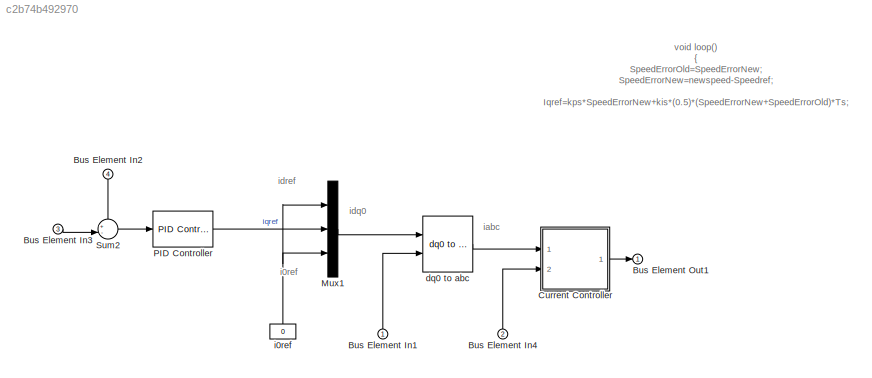
MODEL slx_c2b74b492970
KIND model
CONFIG AbsTol = auto
CONFIG EnableMultiTasking = off
CONFIG FixedStep = auto
CONFIG MaxStep = auto
CONFIG MinStep = auto
CONFIG RelTol = 1e-3
CONFIG SampleTimeConstraint = Unconstrained
CONFIG Solver = VariableStepAuto
CONFIG SolverName = VariableStepAuto
CONFIG StartTime = 0.0
CONFIG StopTime = 10.0
BLOCK [Inport] Bus Element In1
  NameLocation = right
BLOCK [Inport] Bus Element In2
  NameLocation = left
  Port = 4
BLOCK [Inport] Bus Element In3
  Port = 3
BLOCK [Inport] Bus Element In4
  NameLocation = right
  Port = 2
BLOCK [Outport] Bus Element Out1
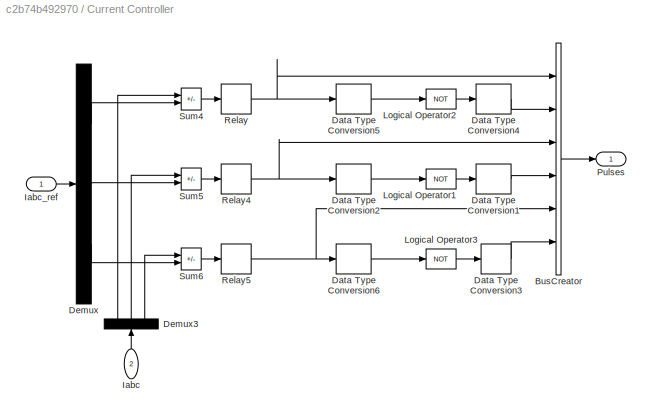
BLOCK [SubSystem] Current Controller
  NameLocation = top
  Ports = [2, 1]
  RequestExecContextInheritance = off
BLOCK [BusCreator] Current Controller/BusCreator
  InheritFromInputs = on
  Inputs = 6
  Ports = [6, 1]
BLOCK [DataTypeConversion] Current Controller/Data Type Conversion1
BLOCK [DataTypeConversion] Current Controller/Data Type Conversion2
BLOCK [DataTypeConversion] Current Controller/Data Type Conversion3
BLOCK [DataTypeConversion] Current Controller/Data Type Conversion4
BLOCK [DataTypeConversion] Current Controller/Data Type Conversion5
BLOCK [DataTypeConversion] Current Controller/Data Type Conversion6
BLOCK [Demux] Current Controller/Demux
  Outputs = 3
  Ports = [1, 3]
BLOCK [Demux] Current Controller/Demux3
  NameLocation = right
  Outputs = 3
  Ports = [1, 3]
BLOCK [Inport] Current Controller/Iabc
  NameLocation = left
  Port = 2
BLOCK [Inport] Current Controller/Iabc_ref
  NameLocation = top
BLOCK [Logic] Current Controller/Logical Operator1
  Operator = NOT
  Ports = [1, 1]
BLOCK [Logic] Current Controller/Logical Operator2
  Operator = NOT
  Ports = [1, 1]
BLOCK [Logic] Current Controller/Logical Operator3
  Operator = NOT
  Ports = [1, 1]
BLOCK [Outport] Current Controller/Pulses
  NameLocation = top
BLOCK [Relay] Current Controller/Relay
  OffSwitchValue = -1/2
  OnSwitchValue = 1/2
BLOCK [Relay] Current Controller/Relay4
  OffSwitchValue = -1/2
  OnSwitchValue = 1/2
BLOCK [Relay] Current Controller/Relay5
  OffSwitchValue = -1/2
  OnSwitchValue = 1/2
BLOCK [Sum] Current Controller/Sum4
  IconShape = rectangular
  InputSameDT = on
  Inputs = -+
  OutDataTypeStr = Inherit: Same as first input
  Ports = [2, 1]
  SaturateOnIntegerOverflow = on
BLOCK [Sum] Current Controller/Sum5
  IconShape = rectangular
  InputSameDT = on
  Inputs = -+
  OutDataTypeStr = Inherit: Same as first input
  Ports = [2, 1]
  SaturateOnIntegerOverflow = on
BLOCK [Sum] Current Controller/Sum6
  IconShape = rectangular
  InputSameDT = on
  Inputs = -+
  OutDataTypeStr = Inherit: Same as first input
  Ports = [2, 1]
  SaturateOnIntegerOverflow = on
BLOCK [Mux] Mux1
  DisplayOption = bar
  Inputs = 3
  Ports = [3, 1]
BLOCK [Reference] PID Controller  REF=simulink/Continuous/PID Controller
  Ports = [1, 1]
  SourceBlock = simulink/Continuous/PID Controller
  SourceProductBaseCode = SL
  SourceType = PID 1dof
BLOCK [Sum] Sum2
  Inputs = +-|
  Ports = [2, 1]
BLOCK [Reference] dq0 to abc  REF=powerlib_meascontrol/Transformations/dq0 to abc
  Ports = [2, 1]
  SourceBlock = powerlib_meascontrol/Transformations/dq0 to abc
  SourceProductBaseCode = PS
  SourceType = dq0 to abc Transformation
BLOCK [Constant] i0ref
  NameLocation = right
  Value = 0
ANNOTATION (root): i0ref
ANNOTATION (root): iabc
ANNOTATION (root): idq0
ANNOTATION (root): idref
ANNOTATION (root): void loop() { SpeedErrorOld=SpeedErrorNew; SpeedErrorNew=newspeed-Speedref; Iqref=kps*SpeedErrorNew+kis*(0.5)*(SpeedErrorNew+SpeedErrorOld)*Ts; Idref=0; I0ref=0; IA=analogRead(IaPin); IB=analogRead(IbPin); IC=analogRead(IcPin); Id=(2/3)*((1) *IA+(-1/2) *IB+(-1/2) *IC); Iq=(2/3)*((0) *IA+(sqrt(3)/2)*IB+(-sqrt(3)/2)*IC); I0=(2/3)*((1/2)*IA+(1/2) *IB+(1/2) *IC); IAref=(1) *(Idref*cos(thetae)-Iqref*si...<+521ch>
LINE Bus Element In1:1 -> dq0 to abc:2
LINE Bus Element In2:1 -> Sum2:1
LINE Bus Element In3:1 -> Sum2:2
LINE Bus Element In4:1 -> Current Controller:2
LINE Current Controller/BusCreator:1 -> Current Controller/Pulses:1
LINE Current Controller/Data Type Conversion1:1 -> Current Controller/BusCreator:4
LINE Current Controller/Data Type Conversion2:1 -> Current Controller/Logical Operator1:1
LINE Current Controller/Data Type Conversion3:1 -> Current Controller/BusCreator:6
LINE Current Controller/Data Type Conversion4:1 -> Current Controller/BusCreator:2
LINE Current Controller/Data Type Conversion5:1 -> Current Controller/Logical Operator2:1
LINE Current Controller/Data Type Conversion6:1 -> Current Controller/Logical Operator3:1
LINE Current Controller/Demux3:1 -> Current Controller/Sum4:1
LINE Current Controller/Demux3:2 -> Current Controller/Sum5:1
LINE Current Controller/Demux3:3 -> Current Controller/Sum6:1
LINE Current Controller/Demux:1 -> Current Controller/Sum4:2
LINE Current Controller/Demux:2 -> Current Controller/Sum5:2
LINE Current Controller/Demux:3 -> Current Controller/Sum6:2
LINE Current Controller/Iabc:1 -> Current Controller/Demux3:1
LINE Current Controller/Iabc_ref:1 -> Current Controller/Demux:1
LINE Current Controller/Logical Operator1:1 -> Current Controller/Data Type Conversion1:1
LINE Current Controller/Logical Operator2:1 -> Current Controller/Data Type Conversion4:1
LINE Current Controller/Logical Operator3:1 -> Current Controller/Data Type Conversion3:1
NET Current Controller/Relay4:1 -> Current Controller/BusCreator:3, Current Controller/Data Type Conversion2:1
NET Current Controller/Relay5:1 -> Current Controller/BusCreator:5, Current Controller/Data Type Conversion6:1
NET Current Controller/Relay:1 -> Current Controller/BusCreator:1, Current Controller/Data Type Conversion5:1
LINE Current Controller/Sum4:1 -> Current Controller/Relay:1
LINE Current Controller/Sum5:1 -> Current Controller/Relay4:1
LINE Current Controller/Sum6:1 -> Current Controller/Relay5:1
LINE Current Controller:1 -> Bus Element Out1:1
LINE Mux1:1 -> dq0 to abc:1
LINE PID Controller:1 -> Mux1:2
LINE Sum2:1 -> PID Controller:1
LINE dq0 to abc:1 -> Current Controller:1
NET i0ref:1 -> Mux1:1, Mux1:3
note: NET lines group one-source signal fan-out (src -> all destinations, sorted); 1:1 wires keep LINE
